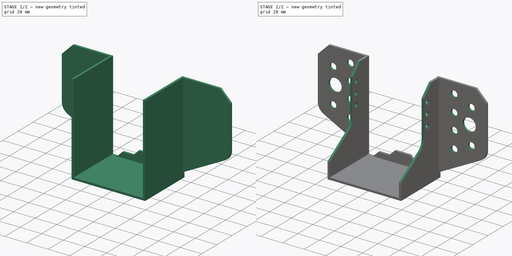
[diagram: build sequence overview — one tinted view per stage of 2, left to right]
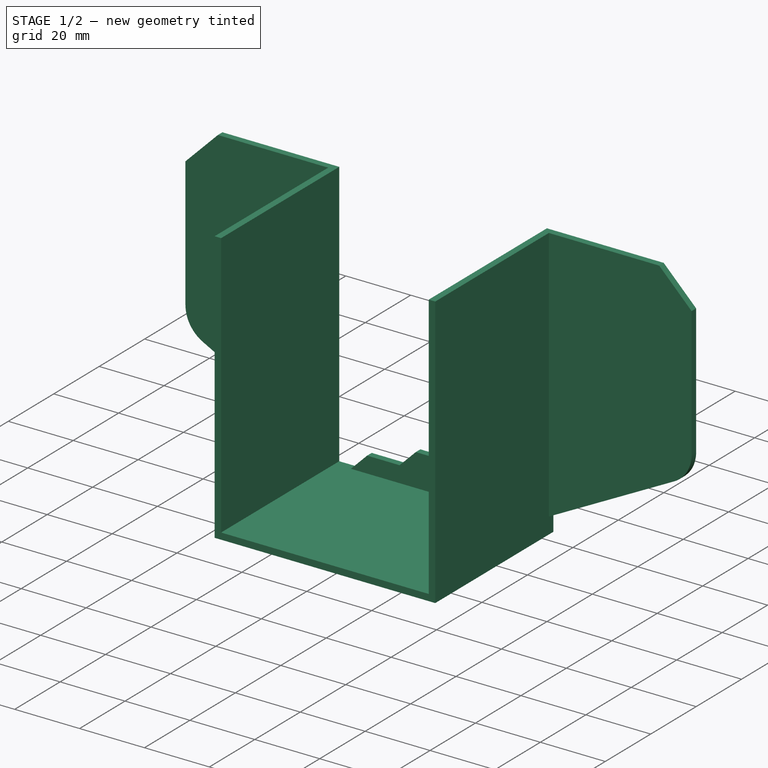
[diagram: stage 1 of 2 — iso view after this stage's code; geometry added in this stage tinted green]
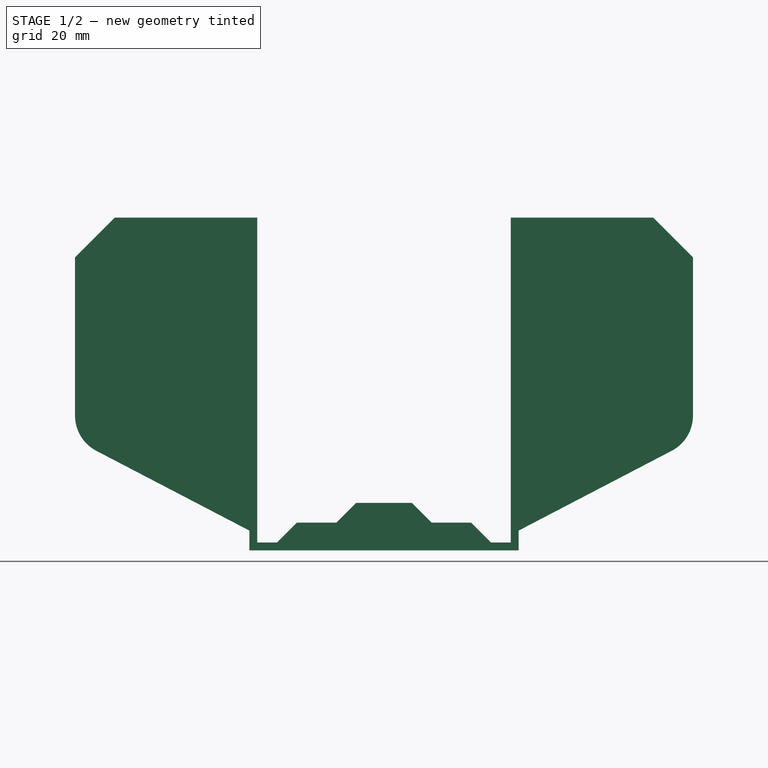
[diagram: stage 1 of 2 — front view after this stage's code; geometry added in this stage tinted green]
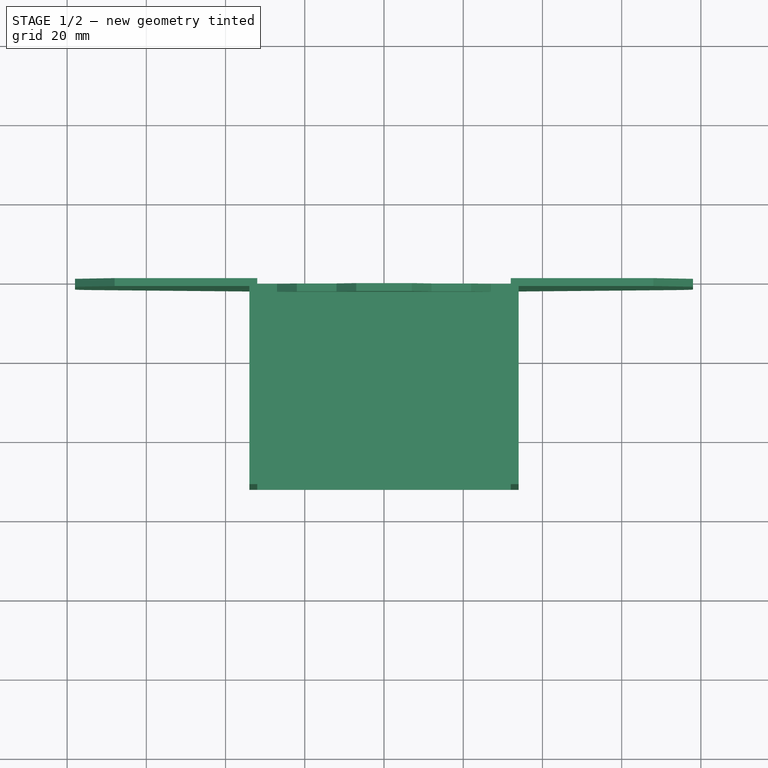
[diagram: stage 1 of 2 — top view after this stage's code; geometry added in this stage tinted green]
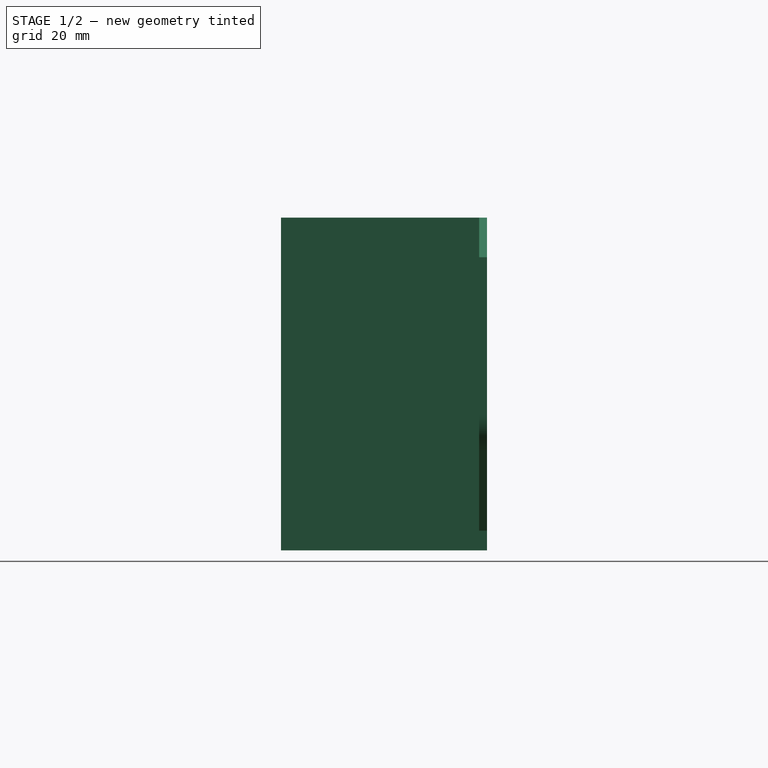
[diagram: stage 1 of 2 — right view after this stage's code; geometry added in this stage tinted green]
FCSTD DOCUMENT  (FreeCAD 0.15R4671 (Git))
Label: SAET200_L64_H83
License: All rights reserved
LicenseURL: http://fr.wikipedia.org/wiki/<copyright redacted>
objects: Sketcher::SketchObject×4, PartDesign::Pad×2, PartDesign::Pocket×2
note: 12 computed .brp shape members not serialized (recipe doc carries the construction recipe); baked Part::Feature solids carry a one-line shape summary decoded from their .brp

FEATURE [Sketcher::SketchObject] Sketch
  Placement = pos=(0,0,0) rot=(1,0,0;1.5708rad)
  sketch-geometry (24):
    g0: LineSegment StartX=32 StartY=-40 StartZ=0 EndX=32 EndY=42 EndZ=0
    g1: LineSegment StartX=32 StartY=42 StartZ=0 EndX=68 EndY=42 EndZ=0
    g2: LineSegment StartX=34 StartY=-42 StartZ=0 EndX=-34 EndY=-42 EndZ=0
    g3: LineSegment StartX=-32 StartY=42 StartZ=0 EndX=-32 EndY=-40 EndZ=0
    g4: LineSegment StartX=34 StartY=-42 StartZ=0 EndX=34 EndY=-37 EndZ=0
    g5: LineSegment StartX=-34 StartY=-42 StartZ=0 EndX=-34 EndY=-37 EndZ=0
    g6: LineSegment StartX=-34 StartY=-37 StartZ=0 EndX=-72.6223 EndY=-16.8676 EndZ=0
    g7: LineSegment StartX=68 StartY=42 StartZ=0 EndX=78 EndY=32 EndZ=0
    g8: LineSegment StartX=78 StartY=32 StartZ=0 EndX=78 EndY=-8 EndZ=0
    g9: LineSegment StartX=72.6223 StartY=-16.8676 StartZ=0 EndX=34 EndY=-37 EndZ=0
    g10: ArcOfCircle CenterX=68 CenterY=-8 CenterZ=0 NormalX=0 NormalY=0 NormalZ=1 Radius=10 StartAngle=5.1929 EndAngle=6.28319
    g11: LineSegment StartX=-78 StartY=-8 StartZ=0 EndX=-78 EndY=32 EndZ=0
    g12: LineSegment StartX=-78 StartY=32 StartZ=0 EndX=-68 EndY=42 EndZ=0
    g13: LineSegment StartX=-32 StartY=42 StartZ=0 EndX=-68 EndY=42 EndZ=0
    g14: ArcOfCircle CenterX=-68 CenterY=-8 CenterZ=0 NormalX=0 NormalY=0 NormalZ=1 Radius=10 StartAngle=3.14159 EndAngle=4.23188
    g15: LineSegment StartX=32 StartY=-40 StartZ=0 EndX=27 EndY=-40 EndZ=0
    g16: LineSegment StartX=-32 StartY=-40 StartZ=0 EndX=-27 EndY=-40 EndZ=0
    g17: LineSegment StartX=-27 StartY=-40 StartZ=0 EndX=-22 EndY=-35 EndZ=0
    g18: LineSegment StartX=-22 StartY=-35 StartZ=0 EndX=-12 EndY=-35 EndZ=0
    g19: LineSegment StartX=-12 StartY=-35 StartZ=0 EndX=-7 EndY=-30 EndZ=0
    g20: LineSegment StartX=27 StartY=-40 StartZ=0 EndX=22 EndY=-35 EndZ=0
    g21: LineSegment StartX=22 StartY=-35 StartZ=0 EndX=12 EndY=-35 EndZ=0
    g22: LineSegment StartX=12 StartY=-35 StartZ=0 EndX=7 EndY=-30 EndZ=0
    g23: LineSegment StartX=7 StartY=-30 StartZ=0 EndX=-7 EndY=-30 EndZ=0
  constraints (61):
    c: Vertical(g0)
    c: Coincident(g0,g1)
    c: Horizontal(g1)
    c: Vertical(g3)
    c: Distance(g1) = 36
    c: Distance(g0) = 82
    c: DistanceX(g-1,g0) = 32
    c: Equal(g3,g0)
    c: DistanceY(g2,g0) = 2
    c: Coincident(g5,g2)
    c: Vertical(g5)
    c: Coincident(g6,g5)
    c: Equal(g5,g4)
    c: Coincident(g7,g1)
    c: Coincident(g8,g7)
    c: Vertical(g8)
    c: DistanceX(g1,g7) = 10
    c: DistanceY(g1,g7) = -10
    c: Coincident(g9,g4)
    c: Tangent(g8,g10) = 1.5708
    c: Tangent(g9,g10) = 1.5708
    c: Radius(g10) = 10
    c: DistanceY(g10,g1) = 50
    c: Vertical(g11)
    c: Coincident(g13,g3)
    c: Coincident(g13,g12)
    c: Horizontal(g13)
    c: Tangent(g6,g14) = 1.5708
    c: Tangent(g11,g14) = 1.5708
    c: Coincident(g11,g12)
    c: Symmetric(g3,g0,g-2)
    c: Symmetric(g12,g1,g-2)
    c: Symmetric(g11,g7,g-2)
    c: Symmetric(g14,g10,g-2)
    c: Symmetric(g5,g4,g-2)
    c: DistanceY(g-1,g0) = 42
    c: Coincident(g15,g0)
    c: Horizontal(g15)
    c: Coincident(g16,g3)
    c: Horizontal(g16)
    c: Coincident(g17,g16)
    c: Coincident(g18,g17)
    c: Horizontal(g18)
    c: Coincident(g19,g18)
    c: Coincident(g20,g15)
    c: Coincident(g21,g20)
    c: Horizontal(g21)
    c: Coincident(g22,g21)
    c: Coincident(g23,g22)
    c: Horizontal(g23)
    c: Coincident(g19,g23)
    c: DistanceX(g15,g0) = 5
    c: DistanceX(g20,g15) = 5
    c: DistanceX(g21,g20) = 10
    c: DistanceX(g22,g21) = 5
    c: DistanceY(g15,g20) = 5
    c: DistanceY(g21,g22) = 5
    c: Symmetric(g15,g16,g-2)
    c: Symmetric(g20,g17,g-2)
    c: Symmetric(g18,g21,g-2)
    c: Symmetric(g19,g22,g-2)
FEATURE [PartDesign::Pad] Pad
  Length = 2
  Length2 = 100
  Placement = pos=(0,0,0) rot=(1,0,0;1.5708rad)
  Sketch = -> Sketch
  Type = 0
FEATURE [Sketcher::SketchObject] Sketch001
  ExternalGeometry = -> [Pad]
  Placement = pos=(0,-2,0) rot=(1,0,0;1.5708rad)
  Support = -> Pad [Face26]
  sketch-geometry (8):
    g0: LineSegment StartX=-32 StartY=42 StartZ=0 EndX=-34 EndY=42 EndZ=0
    g1: LineSegment StartX=-34 StartY=42 StartZ=0 EndX=-34 EndY=-42 EndZ=0
    g2: LineSegment StartX=-34 StartY=-42 StartZ=0 EndX=34 EndY=-42 EndZ=0
    g3: LineSegment StartX=34 StartY=-42 StartZ=0 EndX=34 EndY=42 EndZ=0
    g4: LineSegment StartX=34 StartY=42 StartZ=0 EndX=32 EndY=42 EndZ=0
    g5: LineSegment StartX=32 StartY=42 StartZ=0 EndX=32 EndY=-40 EndZ=0
    g6: LineSegment StartX=-32 StartY=42 StartZ=0 EndX=-32 EndY=-40 EndZ=0
    g7: LineSegment StartX=-32 StartY=-40 StartZ=0 EndX=32 EndY=-40 EndZ=0
  constraints (22):
    c: Coincident(g0,g-3)
    c: Horizontal(g0)
    c: Coincident(g1,g0)
    c: Vertical(g1)
    c: Coincident(g2,g1)
    c: Horizontal(g2)
    c: Coincident(g3,g2)
    c: Vertical(g3)
    c: Coincident(g4,g3)
    c: Horizontal(g4)
    c: Coincident(g5,g4)
    c: Vertical(g5)
    c: Coincident(g6,g0)
    c: Vertical(g6)
    c: Coincident(g7,g6)
    c: Horizontal(g7)
    c: Coincident(g5,g7)
    c: Coincident(g6,g-3)
    c: Coincident(g4,g-4)
    c: Equal(g0,g4)
    c: DistanceX(g4,g3) = 2
    c: DistanceY(g5,g2) = -2
FEATURE [PartDesign::Pad] Pad001
  Length = 50
  Length2 = 100
  Placement = pos=(0,0,0) rot=(1,0,0;1.5708rad)
  Sketch = -> Sketch001
  Type = 0
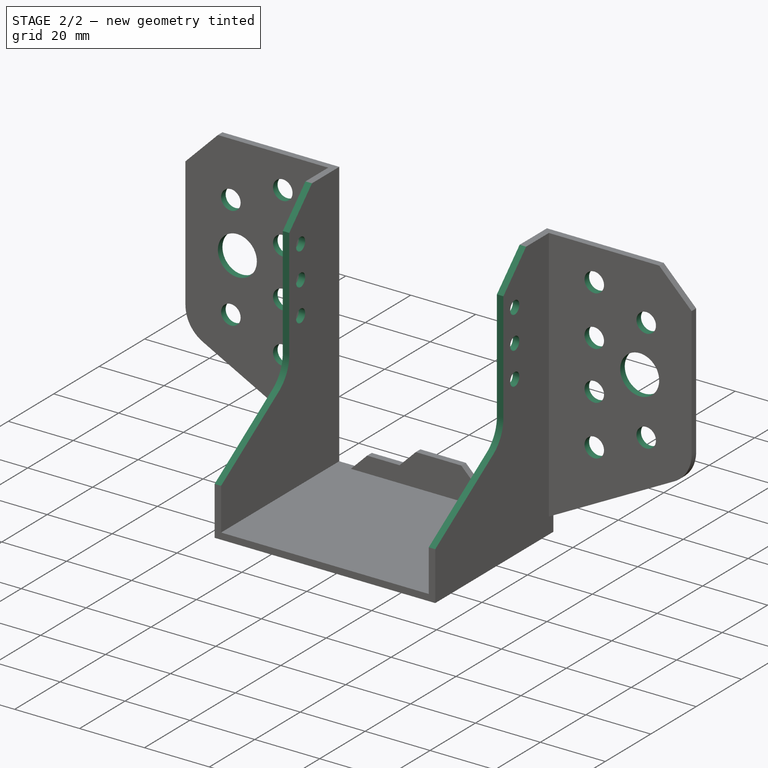
[diagram: stage 2 of 2 — iso view after this stage's code; geometry added in this stage tinted green]
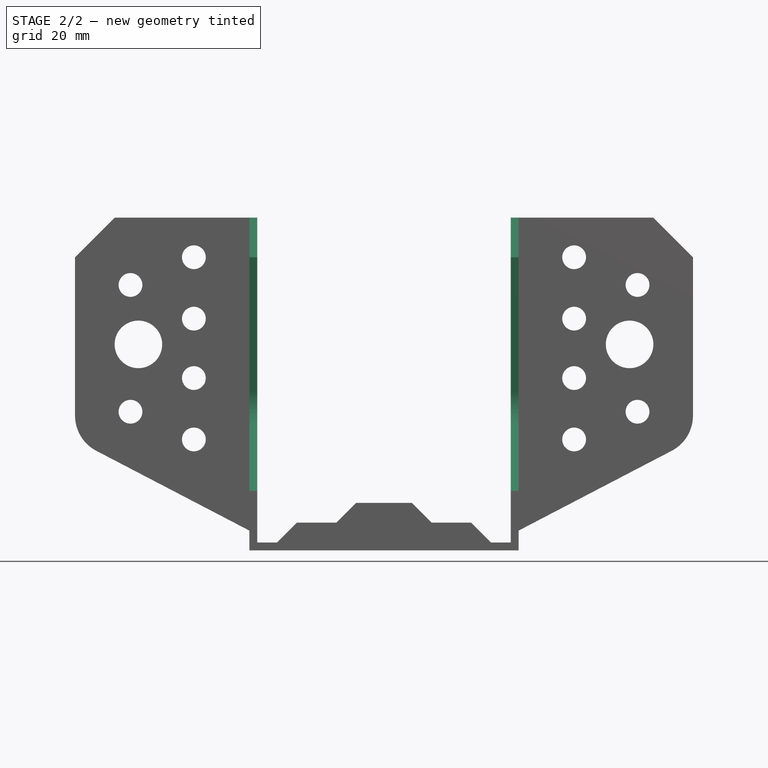
[diagram: stage 2 of 2 — front view after this stage's code; geometry added in this stage tinted green]
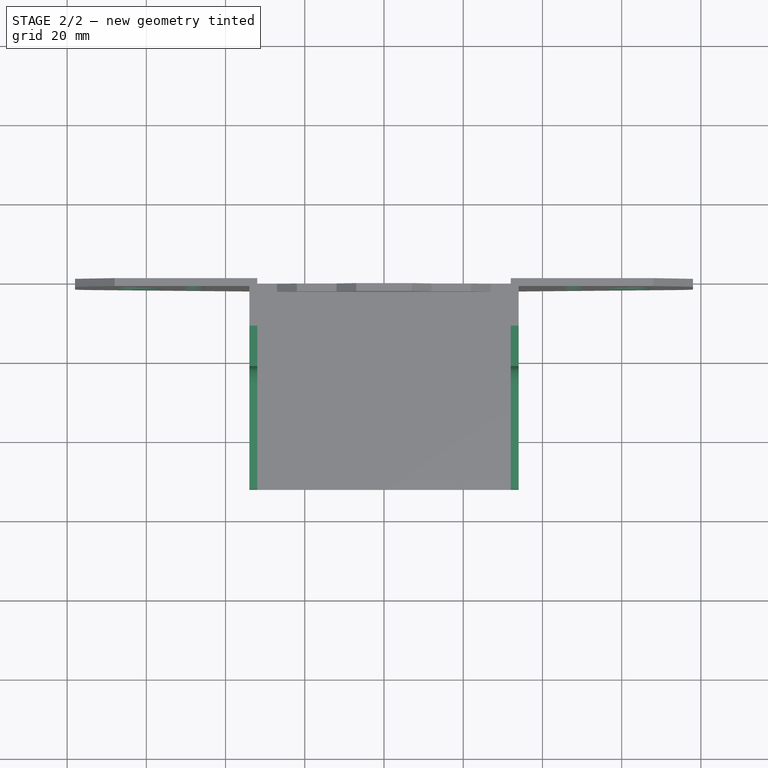
[diagram: stage 2 of 2 — top view after this stage's code; geometry added in this stage tinted green]
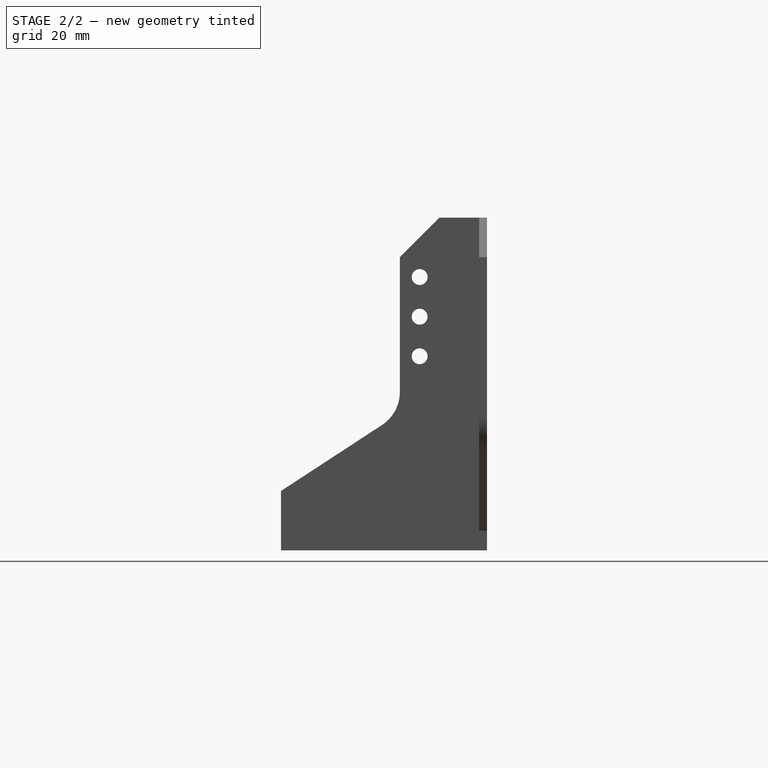
[diagram: stage 2 of 2 — right view after this stage's code; geometry added in this stage tinted green]
FEATURE [Sketcher::SketchObject] Sketch002
  ExternalGeometry = -> [Pad001]
  Placement = pos=(34,0,0) rot=(0.707107,0,0.707107;3.14159rad)
  Support = -> Pad001 [Face29]
  sketch-geometry (9):
    g0: LineSegment StartX=-27 StartY=52 StartZ=0 EndX=-10.3734 EndY=26.5332 EndZ=0
    g1: LineSegment StartX=-2 StartY=22 StartZ=0 EndX=32 EndY=22 EndZ=0
    g2: LineSegment StartX=-27 StartY=52 StartZ=0 EndX=42 EndY=52 EndZ=0
    g3: ArcOfCircle CenterX=-2 CenterY=32 CenterZ=0 NormalX=0 NormalY=0 NormalZ=1 Radius=10 StartAngle=3.71998 EndAngle=4.71239
    g4: LineSegment StartX=32 StartY=22 StartZ=0 EndX=42 EndY=12 EndZ=0
    g5: LineSegment StartX=42 StartY=52 StartZ=0 EndX=42 EndY=12 EndZ=0
    g6: Circle CenterX=7 CenterY=17 CenterZ=0 NormalX=0 NormalY=0 NormalZ=1 Radius=2
    g7: Circle CenterX=17 CenterY=17 CenterZ=0 NormalX=0 NormalY=0 NormalZ=1 Radius=2
    g8: Circle CenterX=27 CenterY=17 CenterZ=0 NormalX=0 NormalY=0 NormalZ=1 Radius=2
  constraints (27):
    c: PointOnObject(g0,g-3)
    c: Horizontal(g1)
    c: Horizontal(g2)
    c: Coincident(g0,g2)
    c: Tangent(g0,g3) = -1.5708
    c: Tangent(g1,g3) = -1.5708
    c: Radius(g3) = 10
    c: DistanceX(g-3,g0) = 15
    c: Coincident(g2,g-3)
    c: Coincident(g4,g1)
    c: PointOnObject(g4,g-4)
    c: Vertical(g5)
    c: Coincident(g4,g5)
    c: Coincident(g5,g2)
    c: DistanceY(g4,g-4) = -10
    c: DistanceY(g4,g1) = 10
    c: DistanceX(g1,g4) = 10
    c: DistanceX(g-3,g3) = 40
    c: Equal(g8,g7)
    c: Equal(g7,g6)
    c: Radius(g6) = 2
    c: DistanceY(g6,g-4) = -15
    c: DistanceY(g-4,g7) = 15
    c: DistanceY(g8,g-4) = -15
    c: DistanceX(g7,g-4) = 25
    c: DistanceX(g7,g8) = 10
    c: DistanceX(g7,g6) = -10
FEATURE [PartDesign::Pocket] Pocket
  Length = 5
  Placement = pos=(0,0,0) rot=(1,0,0;1.5708rad)
  Sketch = -> Sketch002
  Type = 1
FEATURE [Sketcher::SketchObject] Sketch003
  ExternalGeometry = -> [Pocket]
  Placement = pos=(0,-2,0) rot=(1,0,0;1.5708rad)
  Support = -> Pocket [Face28]
  sketch-geometry (14):
    g0: Circle CenterX=48 CenterY=32 CenterZ=0 NormalX=0 NormalY=0 NormalZ=1 Radius=3
    g1: Circle CenterX=64 CenterY=25 CenterZ=0 NormalX=0 NormalY=0 NormalZ=1 Radius=3
    g2: Circle CenterX=48 CenterY=16.5 CenterZ=0 NormalX=0 NormalY=0 NormalZ=1 Radius=3
    g3: Circle CenterX=62 CenterY=10 CenterZ=0 NormalX=0 NormalY=0 NormalZ=1 Radius=6
    g4: Circle CenterX=48 CenterY=1.5 CenterZ=0 NormalX=0 NormalY=0 NormalZ=1 Radius=3
    g5: Circle CenterX=48 CenterY=-14 CenterZ=0 NormalX=0 NormalY=0 NormalZ=1 Radius=3
    g6: Circle CenterX=64 CenterY=-7 CenterZ=0 NormalX=0 NormalY=0 NormalZ=1 Radius=3
    g7: Circle CenterX=-48 CenterY=16.5 CenterZ=0 NormalX=0 NormalY=0 NormalZ=1 Radius=3
    g8: Circle CenterX=-48 CenterY=32 CenterZ=0 NormalX=0 NormalY=0 NormalZ=1 Radius=3
    g9: Circle CenterX=-62 CenterY=10 CenterZ=0 NormalX=0 NormalY=0 NormalZ=1 Radius=6
    g10: Circle CenterX=-64 CenterY=25 CenterZ=0 NormalX=0 NormalY=0 NormalZ=1 Radius=3
    g11: Circle CenterX=-64 CenterY=-7 CenterZ=0 NormalX=0 NormalY=0 NormalZ=1 Radius=3
    g12: Circle CenterX=-48 CenterY=1.5 CenterZ=0 NormalX=0 NormalY=0 NormalZ=1 Radius=3
    g13: Circle CenterX=-48 CenterY=-14 CenterZ=0 NormalX=0 NormalY=0 NormalZ=1 Radius=3
  constraints (35):
    c: Equal(g5,g6)
    c: Equal(g6,g4)
    c: Equal(g4,g2)
    c: Equal(g2,g1)
    c: Equal(g1,g0)
    c: Radius(g0) = 3
    c: DistanceX(g0,g-3) = -14
    c: DistanceX(g0,g1) = 16
    c: DistanceX(g2,g-3) = -14
    c: DistanceY(g0,g-3) = 10
    c: DistanceY(g0,g2) = -15.5
    c: DistanceY(g4,g5) = -15.5
    c: DistanceX(g4,g-3) = -14
    c: DistanceX(g5,g-3) = -14
    c: DistanceX(g6,g4) = -16
    c: DistanceY(g1,g0) = 7
    c: DistanceY(g5,g6) = 7
    c: Radius(g3) = 6
    c: DistanceY(g3,g-3) = 32
    c: DistanceX(g3,g-3) = -28
    c: DistanceY(g4,g2) = 15
    c: Equal(g8,g10)
    c: Equal(g10,g7)
    c: Equal(g7,g12)
    c: Equal(g12,g11)
    c: Equal(g11,g13)
    c: Equal(g13,g0)
    c: Equal(g9,g3)
    c: Symmetric(g8,g0,g-2)
    c: Symmetric(g10,g1,g-2)
    c: Symmetric(g7,g2,g-2)
    c: Symmetric(g9,g3,g-2)
    c: Symmetric(g12,g4,g-2)
    c: Symmetric(g11,g6,g-2)
    c: Symmetric(g13,g5,g-2)
FEATURE [PartDesign::Pocket] Pocket001
  Length = 5
  Placement = pos=(0,0,0) rot=(1,0,0;1.5708rad)
  Sketch = -> Sketch003
  Type = 0
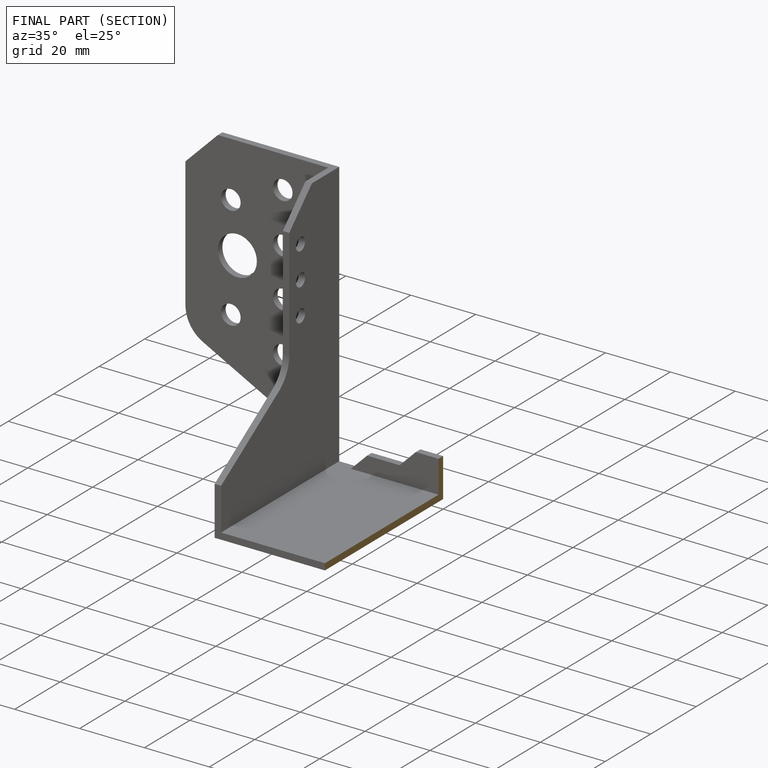
[diagram: finished part — half-section view (interior)]
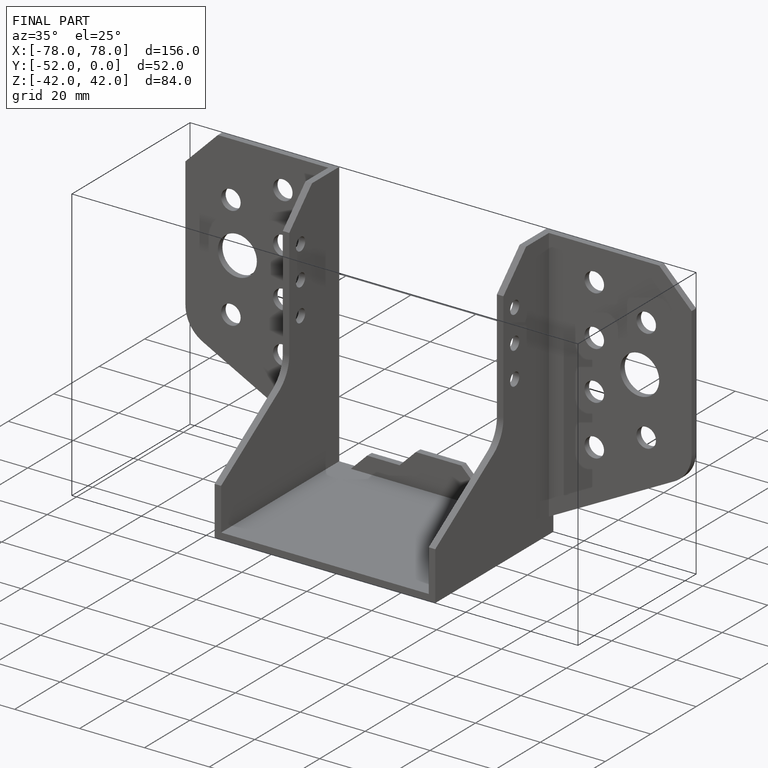
[diagram: finished part — iso view with bounding-box wireframe]
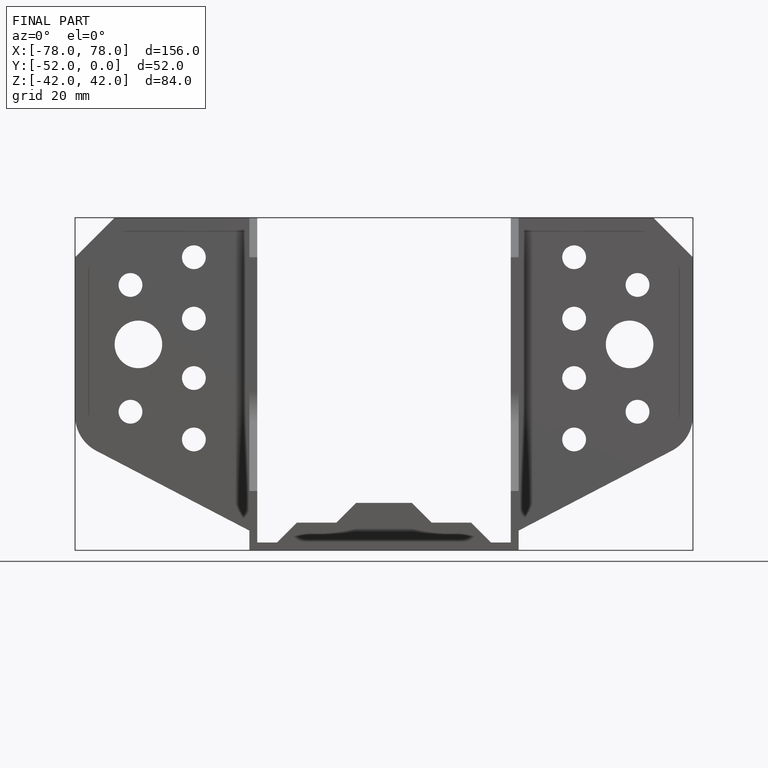
[diagram: finished part — front view with bounding-box wireframe]
